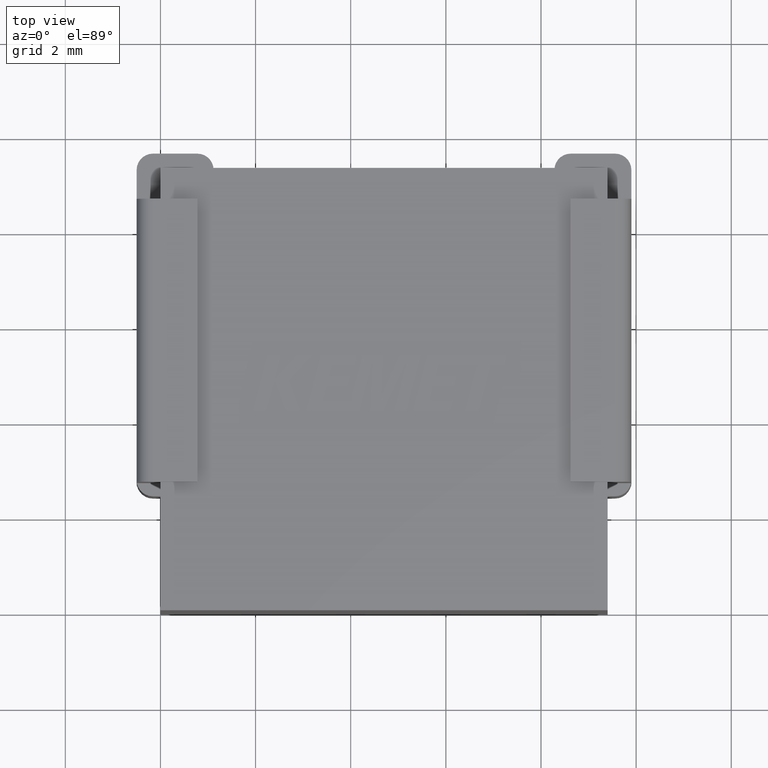
[diagram: clean part render]
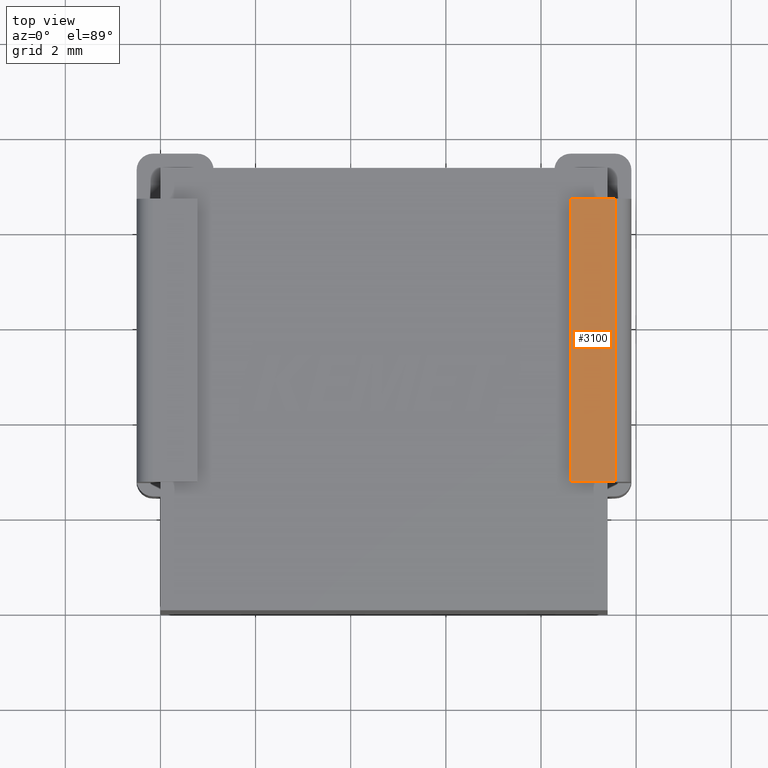
[diagram: same view with one face highlighted and labeled with its STEP entity id]
A machine part, top view. The second image highlights one B-rep face of the part: STEP entity #3100.
In plain terms, the highlighted planar face has unit normal (-0, 0, 1).
Its self-contained STEP definition (entity closure, byte-faithful):
#105 = LINE ( 'NONE', #2937, #3220 ) ;
#229 = EDGE_CURVE ( 'NONE', #1845, #4071, #243, .T. ) ;
#243 = LINE ( 'NONE', #1723, #4352 ) ;
#283 = EDGE_CURVE ( 'NONE', #1720, #1845, #2509, .T. ) ;
#600 = LINE ( 'NONE', #1682, #989 ) ;
#634 = VECTOR ( 'NONE', #3593, 1000.000000000000000 ) ;
#727 = CARTESIAN_POINT ( 'NONE',  ( 8.622807017543857810, 8.650989808689432792, 0.1455629377962412430 ) ) ;
#830 = ORIENTED_EDGE ( 'NONE', *, *, #229, .T. ) ;
#907 = DIRECTION ( 'NONE',  ( -1.000000000000000000, 0.000000000000000000, -1.273341837191079864E-16 ) ) ;
#937 = CARTESIAN_POINT ( 'NONE',  ( 9.557999999999998053, 8.650989808689432792, 0.1455629377962413262 ) ) ;
#983 = EDGE_LOOP ( 'NONE', ( #1403, #2810, #1296, #830 ) ) ;
#989 = VECTOR ( 'NONE', #907, 1000.000000000000000 ) ;
#1129 = CARTESIAN_POINT ( 'NONE',  ( 9.899999999999998579, 8.650989808689432792, 0.1455629377962413817 ) ) ;
#1189 = DIRECTION ( 'NONE',  ( -0.000000000000000000, 1.000000000000000000, -0.000000000000000000 ) ) ;
#1296 = ORIENTED_EDGE ( 'NONE', *, *, #283, .T. ) ;
#1403 = ORIENTED_EDGE ( 'NONE', *, *, #2027, .F. ) ;
#1620 = AXIS2_PLACEMENT_3D ( 'NONE', #1129, #2602, #2540 ) ;
#1682 = CARTESIAN_POINT ( 'NONE',  ( 9.899999999999998579, 2.698989808689431946, 0.1455629377962413817 ) ) ;
#1720 = VERTEX_POINT ( 'NONE', #937 ) ;
#1723 = CARTESIAN_POINT ( 'NONE',  ( 8.622807017543857810, 8.650989808689432792, 0.1455629377962412430 ) ) ;
#1845 = VERTEX_POINT ( 'NONE', #727 ) ;
#2027 = EDGE_CURVE ( 'NONE', #3069, #4071, #600, .T. ) ;
#2121 = CARTESIAN_POINT ( 'NONE',  ( 9.899999999999998579, 8.650989808689432792, 0.1455629377962413817 ) ) ;
#2160 = FACE_OUTER_BOUND ( 'NONE', #983, .T. ) ;
#2348 = EDGE_CURVE ( 'NONE', #3069, #1720, #105, .T. ) ;
#2448 = CARTESIAN_POINT ( 'NONE',  ( 9.557999999999998053, 2.698989808689431946, 0.1455629377962413262 ) ) ;
#2469 = PLANE ( 'NONE',  #1620 ) ;
#2509 = LINE ( 'NONE', #2121, #634 ) ;
#2540 = DIRECTION ( 'NONE',  ( 1.000000000000000000, 0.000000000000000000, 1.273341837191079864E-16 ) ) ;
#2602 = DIRECTION ( 'NONE',  ( -1.273341837191079864E-16, 0.000000000000000000, 1.000000000000000000 ) ) ;
#2810 = ORIENTED_EDGE ( 'NONE', *, *, #2348, .T. ) ;
#2835 = CARTESIAN_POINT ( 'NONE',  ( 8.622807017543857810, 2.698989808689431946, 0.1455629377962412430 ) ) ;
#2937 = CARTESIAN_POINT ( 'NONE',  ( 9.557999999999998053, 8.650989808689432792, 0.1455629377962413262 ) ) ;
#3069 = VERTEX_POINT ( 'NONE', #2448 ) ;
#3100 = ADVANCED_FACE ( 'NONE', ( #2160 ), #2469, .T. ) ;
#3220 = VECTOR ( 'NONE', #1189, 1000.000000000000000 ) ;
#3593 = DIRECTION ( 'NONE',  ( -1.000000000000000000, 0.000000000000000000, -1.273341837191079864E-16 ) ) ;
#4071 = VERTEX_POINT ( 'NONE', #2835 ) ;
#4352 = VECTOR ( 'NONE', #4517, 1000.000000000000000 ) ;
#4517 = DIRECTION ( 'NONE',  ( 0.000000000000000000, -1.000000000000000000, 0.000000000000000000 ) ) ;